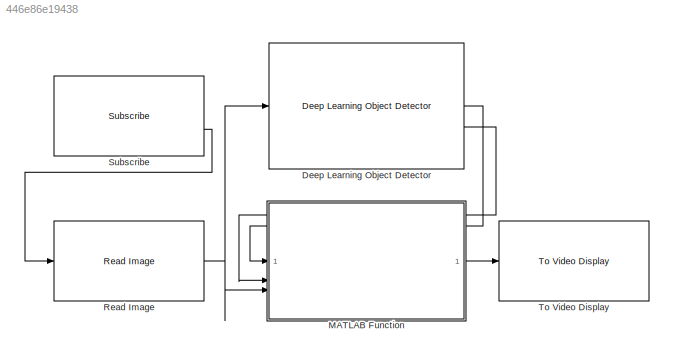
MODEL slx_446e86e19438
KIND model
CONFIG AbsTol = auto
CONFIG EnableMultiTasking = off
CONFIG FixedStep = auto
CONFIG MaxStep = auto
CONFIG MinStep = auto
CONFIG RelTol = 1e-3
CONFIG SampleTimeConstraint = Unconstrained
CONFIG SolverName = FixedStepAuto
CONFIG StartTime = 0.0
CONFIG StopTime = inf
WORKSPACE source: mxarray member
WORKSPACE SL_ROS_VariableLengthArrays_MaxSizes: object (value not decoded)
BLOCK [Reference] Deep Learning Object Detector  REF=visionanalysis/Deep Learning Object Detector
  SourceBlock = visionanalysis/Deep Learning Object Detector
  SourceType = Deep Learning Object Detector
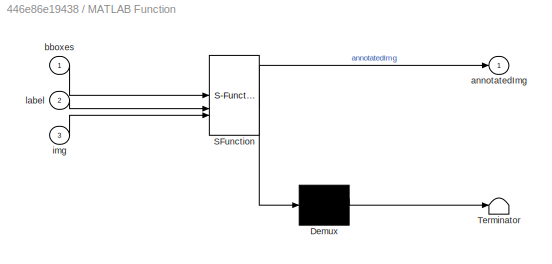
BLOCK [SubSystem] MATLAB Function
  ErrorFcn = Stateflow.Translate.translate
  PermitHierarchicalResolution = ExplicitOnly
  SFBlockType = MATLAB Function
  TreatAsAtomicUnit = on
BLOCK [Demux] MATLAB Function/ Demux 
  Outputs = 1
BLOCK [S-Function] MATLAB Function/ SFunction 
  EnableBusSupport = on
  FunctionName = sf_sfun
  PortCounts = [3 2]
  SFcnIsStateOwnerBlock = off
  SFunctionDeploymentMode = off
  Tag = Stateflow S-Function 1
BLOCK [Terminator] MATLAB Function/ Terminator 
BLOCK [Outport] MATLAB Function/annotatedImg
BLOCK [Inport] MATLAB Function/bboxes
BLOCK [Inport] MATLAB Function/img
  Port = 3
BLOCK [Inport] MATLAB Function/label
  Port = 2
BLOCK [Reference] Read Image  REF=ros2lib/Read Image  (lib defined in slx_3c1549211f48)
  SourceBlock = ros2lib/Read Image
  SourceType = ros.slros2.internal.block.ReadImage
BLOCK [Reference] Subscribe  REF=ros2lib/Subscribe  (lib defined in slx_3c1549211f48)
  SourceBlock = ros2lib/Subscribe
  SourceType = ROS2 Subscribe
BLOCK [Reference] To Video Display  REF=visionsinks/To Video Display
  SourceBlock = visionsinks/To Video Display
  SourceType = To Video Display
LINE Deep Learning Object Detector:1 -> MATLAB Function:1
LINE Deep Learning Object Detector:2 -> MATLAB Function:2
LINE MATLAB Function:1 -> To Video Display:1
NET Read Image:1 -> Deep Learning Object Detector:1, MATLAB Function:3
LINE Subscribe:2 -> Read Image:1
note: NET lines group one-source signal fan-out (src -> all destinations, sorted); 1:1 wires keep LINE
CHART MATLAB Function states=1 transitions=1
  STATE_LABEL 'eML_blk_kernel()'
  STATE_LABEL 'SCRIPT:\nfunction annotatedImg = annotateImg(bboxes, label, img)\n\n    annotatedImg = img;\n\n    if ~isempty(bboxes)\n        annotatedImg = insertObjectAnnotation(img,"rectangle",bboxes,label);\n    \n    end\n\n\n\n'
CHART  states=0 transitions=0
